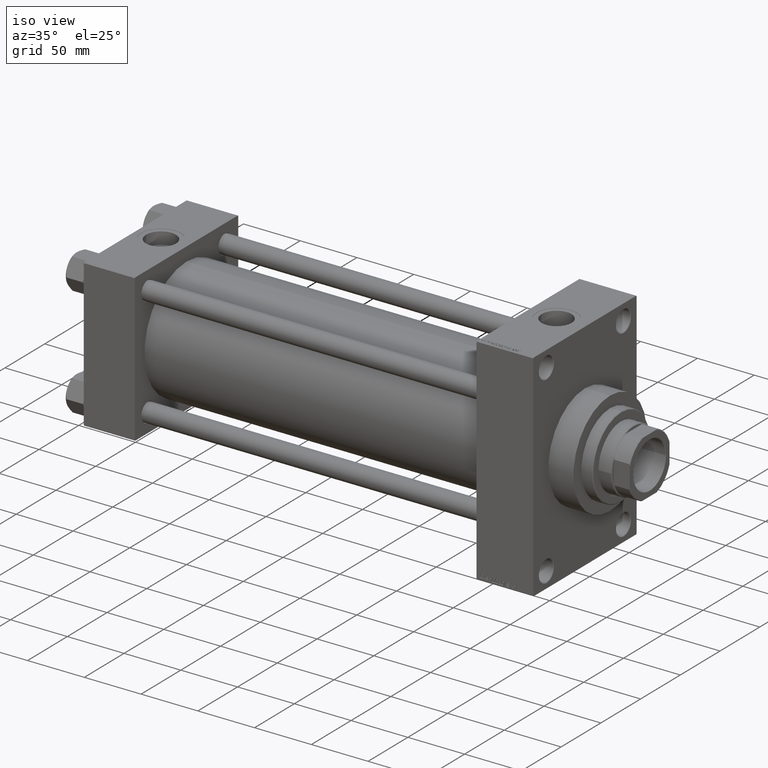
[diagram: clean part render]
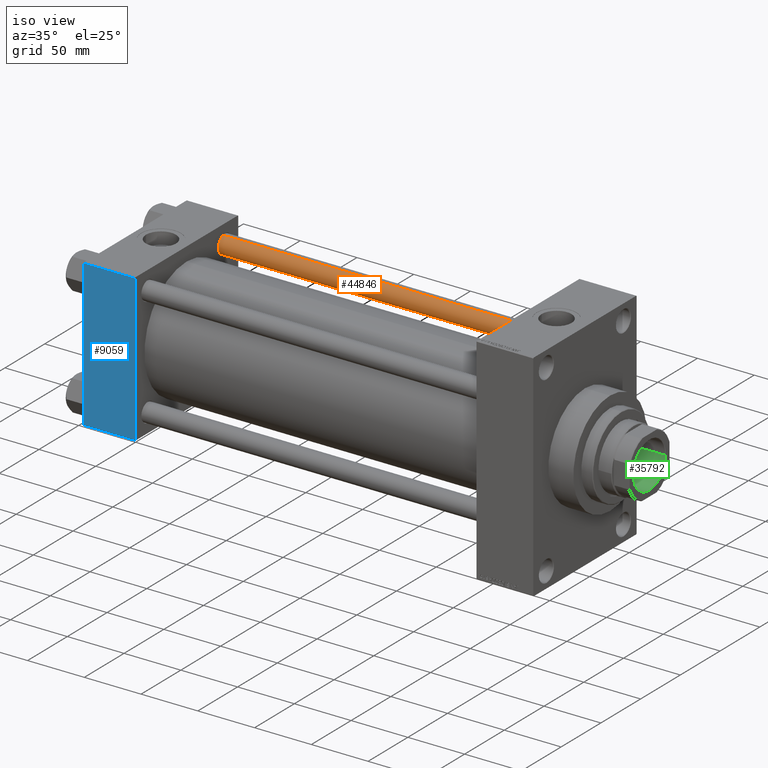
[diagram: same view with three faces highlighted in distinct colors, each labeled with its STEP entity id]
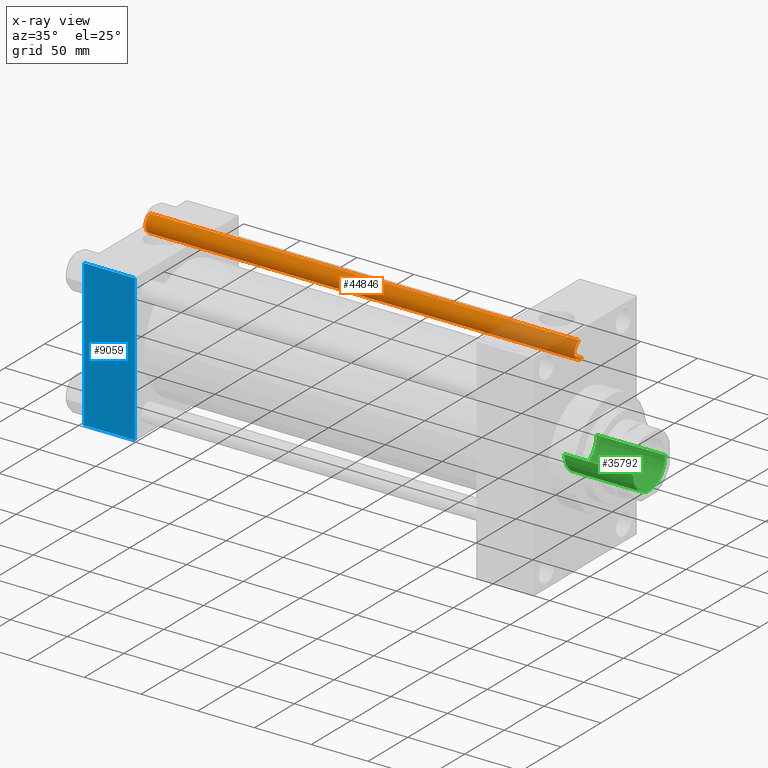
[diagram: x-ray of the same camera — body ghosted, the three highlighted faces saturated]
A machine part, iso view with three faces highlighted in distinct colors.
The next image is the same camera in x-ray (body ghosted, the three faces saturated) — at least one of them is partly hidden behind the body in this view.
Their STEP definitions:

[orange] entity #44846 — the highlighted cylindrical surface (edge-blend (fillet) strip) has radius 8 mm, axis along (-1, -0, 0).
#1501 = ORIENTED_EDGE ( 'NONE', *, *, #3882, .T. ) ;
#3882 = EDGE_CURVE ( 'NONE', #15714, #15536, #28089, .T. ) ;
#8811 = DIRECTION ( 'NONE',  ( 1.000000000000000000, 0.000000000000000000, 0.000000000000000000 ) ) ;
#13014 = CARTESIAN_POINT ( 'NONE',  ( -8.000000000000000000, 0.000000000000000000, 378.4999999999999432 ) ) ;
#13062 = DIRECTION ( 'NONE',  ( -0.000000000000000000, -0.000000000000000000, 1.000000000000000000 ) ) ;
#13870 = DIRECTION ( 'NONE',  ( -0.000000000000000000, -0.000000000000000000, -1.000000000000000000 ) ) ;
#14220 = CARTESIAN_POINT ( 'NONE',  ( 0.000000000000000000, 0.000000000000000000, 379.0000000000000000 ) ) ;
#15536 = VERTEX_POINT ( 'NONE', #21175 ) ;
#15595 = EDGE_CURVE ( 'NONE', #35302, #28977, #32343, .T. ) ;
#15714 = VERTEX_POINT ( 'NONE', #49631 ) ;
#16420 = EDGE_CURVE ( 'NONE', #28977, #15714, #30572, .T. ) ;
#18990 = DIRECTION ( 'NONE',  ( -0.000000000000000000, -0.000000000000000000, -1.000000000000000000 ) ) ;
#21175 = CARTESIAN_POINT ( 'NONE',  ( 8.000000000000000000, 9.797174393178825657E-16, 0.4999999999998894218 ) ) ;
#21192 = LINE ( 'NONE', #25488, #22249 ) ;
#22249 = VECTOR ( 'NONE', #13870, 1000.000000000000000 ) ;
#24830 = DIRECTION ( 'NONE',  ( -1.000000000000000000, 0.000000000000000000, 0.000000000000000000 ) ) ;
#25293 = ORIENTED_EDGE ( 'NONE', *, *, #15595, .T. ) ;
#25488 = CARTESIAN_POINT ( 'NONE',  ( 8.000000000000000000, 9.797174393178825657E-16, 379.0000000000000000 ) ) ;
#26408 = ORIENTED_EDGE ( 'NONE', *, *, #16420, .T. ) ;
#27457 = EDGE_CURVE ( 'NONE', #35302, #15536, #21192, .T. ) ;
#27967 = CARTESIAN_POINT ( 'NONE',  ( 0.000000000000000000, 0.000000000000000000, 378.4999999999999432 ) ) ;
#28089 = CIRCLE ( 'NONE', #47441, 8.000000000000000000 ) ;
#28977 = VERTEX_POINT ( 'NONE', #13014 ) ;
#30572 = LINE ( 'NONE', #45983, #48542 ) ;
#31182 = AXIS2_PLACEMENT_3D ( 'NONE', #14220, #48777, #24830 ) ;
#32343 = CIRCLE ( 'NONE', #38800, 8.000000000000000000 ) ;
#35302 = VERTEX_POINT ( 'NONE', #38251 ) ;
#35979 = CARTESIAN_POINT ( 'NONE',  ( 0.000000000000000000, 0.000000000000000000, 0.4999999999998894218 ) ) ;
#38251 = CARTESIAN_POINT ( 'NONE',  ( 8.000000000000000000, 9.797174393178825657E-16, 378.4999999999999432 ) ) ;
#38800 = AXIS2_PLACEMENT_3D ( 'NONE', #27967, #43350, #8811 ) ;
#39762 = DIRECTION ( 'NONE',  ( 1.000000000000000000, 0.000000000000000000, 0.000000000000000000 ) ) ;
#40187 = CYLINDRICAL_SURFACE ( 'NONE', #31182, 8.000000000000000000 ) ;
#40952 = FACE_OUTER_BOUND ( 'NONE', #44067, .T. ) ;
#43350 = DIRECTION ( 'NONE',  ( 0.000000000000000000, 0.000000000000000000, -1.000000000000000000 ) ) ;
#44067 = EDGE_LOOP ( 'NONE', ( #45243, #25293, #26408, #1501 ) ) ;
#44846 = ADVANCED_FACE ( 'NONE', ( #40952 ), #40187, .T. ) ;
#45243 = ORIENTED_EDGE ( 'NONE', *, *, #27457, .F. ) ;
#45983 = CARTESIAN_POINT ( 'NONE',  ( -8.000000000000000000, 0.000000000000000000, 379.0000000000000000 ) ) ;
#47441 = AXIS2_PLACEMENT_3D ( 'NONE', #35979, #13062, #39762 ) ;
#48542 = VECTOR ( 'NONE', #18990, 1000.000000000000000 ) ;
#48777 = DIRECTION ( 'NONE',  ( -0.000000000000000000, -0.000000000000000000, -1.000000000000000000 ) ) ;
#49631 = CARTESIAN_POINT ( 'NONE',  ( -8.000000000000000000, 0.000000000000000000, 0.4999999999998894218 ) ) ;

[blue] entity #9059 — the highlighted planar face has unit normal (0, 1, 0).
#2958 = VECTOR ( 'NONE', #29754, 1000.000000000000000 ) ;
#4227 = EDGE_CURVE ( 'NONE', #39031, #38340, #43011, .T. ) ;
#4574 = DIRECTION ( 'NONE',  ( 0.000000000000000000, 0.000000000000000000, -1.000000000000000000 ) ) ;
#5822 = LINE ( 'NONE', #14129, #2958 ) ;
#6194 = VECTOR ( 'NONE', #4574, 1000.000000000000000 ) ;
#9059 = ADVANCED_FACE ( 'NONE', ( #46933 ), #28498, .F. ) ;
#12881 = CARTESIAN_POINT ( 'NONE',  ( 45.00000000000000000, -65.00000000000000000, -64.49999999999991473 ) ) ;
#14129 = CARTESIAN_POINT ( 'NONE',  ( 45.00000000000000000, -65.00000000000000000, 64.50000000000000000 ) ) ;
#18595 = VERTEX_POINT ( 'NONE', #45666 ) ;
#20524 = LINE ( 'NONE', #31110, #24027 ) ;
#23744 = LINE ( 'NONE', #39102, #6194 ) ;
#24027 = VECTOR ( 'NONE', #39665, 1000.000000000000000 ) ;
#24720 = DIRECTION ( 'NONE',  ( 0.000000000000000000, -0.000000000000000000, 1.000000000000000000 ) ) ;
#24984 = DIRECTION ( 'NONE',  ( -0.000000000000000000, 1.000000000000000000, 0.000000000000000000 ) ) ;
#27482 = AXIS2_PLACEMENT_3D ( 'NONE', #36557, #24984, #24720 ) ;
#27544 = ORIENTED_EDGE ( 'NONE', *, *, #36717, .T. ) ;
#28498 = PLANE ( 'NONE',  #27482 ) ;
#28966 = VECTOR ( 'NONE', #31153, 1000.000000000000000 ) ;
#29589 = EDGE_CURVE ( 'NONE', #18595, #33998, #23744, .T. ) ;
#29754 = DIRECTION ( 'NONE',  ( -1.000000000000000000, 0.000000000000000000, 0.000000000000000000 ) ) ;
#31110 = CARTESIAN_POINT ( 'NONE',  ( 45.00000000000000000, -65.00000000000000000, -64.49999999999991473 ) ) ;
#31153 = DIRECTION ( 'NONE',  ( 0.000000000000000000, 0.000000000000000000, -1.000000000000000000 ) ) ;
#31629 = ORIENTED_EDGE ( 'NONE', *, *, #29589, .T. ) ;
#33998 = VERTEX_POINT ( 'NONE', #35172 ) ;
#35172 = CARTESIAN_POINT ( 'NONE',  ( 0.000000000000000000, -65.00000000000000000, -64.49999999999991473 ) ) ;
#35917 = CARTESIAN_POINT ( 'NONE',  ( 45.00000000000000000, -65.00000000000000000, 65.00000000000000000 ) ) ;
#36557 = CARTESIAN_POINT ( 'NONE',  ( 45.00000000000000000, -65.00000000000000000, 65.00000000000000000 ) ) ;
#36717 = EDGE_CURVE ( 'NONE', #33998, #38340, #20524, .T. ) ;
#38340 = VERTEX_POINT ( 'NONE', #12881 ) ;
#39031 = VERTEX_POINT ( 'NONE', #44022 ) ;
#39102 = CARTESIAN_POINT ( 'NONE',  ( 0.000000000000000000, -65.00000000000000000, 65.00000000000000000 ) ) ;
#39665 = DIRECTION ( 'NONE',  ( 1.000000000000000000, 0.000000000000000000, 0.000000000000000000 ) ) ;
#41160 = EDGE_LOOP ( 'NONE', ( #31629, #27544, #44761, #42125 ) ) ;
#42125 = ORIENTED_EDGE ( 'NONE', *, *, #43146, .T. ) ;
#43011 = LINE ( 'NONE', #35917, #28966 ) ;
#43146 = EDGE_CURVE ( 'NONE', #39031, #18595, #5822, .T. ) ;
#44022 = CARTESIAN_POINT ( 'NONE',  ( 45.00000000000000000, -65.00000000000000000, 64.50000000000000000 ) ) ;
#44761 = ORIENTED_EDGE ( 'NONE', *, *, #4227, .F. ) ;
#45666 = CARTESIAN_POINT ( 'NONE',  ( 0.000000000000000000, -65.00000000000000000, 64.50000000000000000 ) ) ;
#46933 = FACE_OUTER_BOUND ( 'NONE', #41160, .T. ) ;

[green] entity #35792 — the highlighted cylindrical surface (edge-blend (fillet) strip) has radius 20.25 mm, axis along (1, 0, 0).
#6336 = DIRECTION ( 'NONE',  ( -0.000000000000000000, -0.000000000000000000, 1.000000000000000000 ) ) ;
#7603 = DIRECTION ( 'NONE',  ( 0.000000000000000000, 0.000000000000000000, 1.000000000000000000 ) ) ;
#7742 = CIRCLE ( 'NONE', #38314, 20.24999999999999289 ) ;
#8687 = AXIS2_PLACEMENT_3D ( 'NONE', #25511, #6336, #29518 ) ;
#10668 = CARTESIAN_POINT ( 'NONE',  ( 20.24999999999998934, 0.000000000000000000, 347.0000000000000568 ) ) ;
#11096 = VERTEX_POINT ( 'NONE', #32768 ) ;
#11257 = VERTEX_POINT ( 'NONE', #13073 ) ;
#11342 = CARTESIAN_POINT ( 'NONE',  ( -20.24999999999998934, 2.479909768273389117E-15, 347.0000000000000568 ) ) ;
#11622 = CARTESIAN_POINT ( 'NONE',  ( 20.24999999999999289, 0.000000000000000000, 408.0000000000000568 ) ) ;
#13036 = EDGE_CURVE ( 'NONE', #40917, #11096, #34299, .T. ) ;
#13073 = CARTESIAN_POINT ( 'NONE',  ( -20.24999999999999289, 2.479909768273389511E-15, 407.6999999999998749 ) ) ;
#13223 = EDGE_LOOP ( 'NONE', ( #34064, #29963, #32937, #37177 ) ) ;
#15146 = DIRECTION ( 'NONE',  ( -0.000000000000000000, -0.000000000000000000, 1.000000000000000000 ) ) ;
#16432 = AXIS2_PLACEMENT_3D ( 'NONE', #46845, #31673, #24377 ) ;
#18095 = CARTESIAN_POINT ( 'NONE',  ( -20.24999999999999289, 2.479909768273389511E-15, 408.0000000000000568 ) ) ;
#18177 = FACE_OUTER_BOUND ( 'NONE', #13223, .T. ) ;
#22975 = DIRECTION ( 'NONE',  ( 1.000000000000000000, 0.000000000000000000, 0.000000000000000000 ) ) ;
#23262 = EDGE_CURVE ( 'NONE', #40917, #38592, #25326, .T. ) ;
#24377 = DIRECTION ( 'NONE',  ( 1.000000000000000000, 0.000000000000000000, 0.000000000000000000 ) ) ;
#25326 = CIRCLE ( 'NONE', #16432, 20.24999999999998934 ) ;
#25511 = CARTESIAN_POINT ( 'NONE',  ( 0.000000000000000000, 0.000000000000000000, 408.0000000000000568 ) ) ;
#25916 = LINE ( 'NONE', #18095, #38449 ) ;
#27269 = EDGE_CURVE ( 'NONE', #11096, #11257, #7742, .T. ) ;
#29518 = DIRECTION ( 'NONE',  ( 1.000000000000000000, 0.000000000000000000, 0.000000000000000000 ) ) ;
#29963 = ORIENTED_EDGE ( 'NONE', *, *, #23262, .F. ) ;
#31673 = DIRECTION ( 'NONE',  ( -0.000000000000000000, -0.000000000000000000, 1.000000000000000000 ) ) ;
#32768 = CARTESIAN_POINT ( 'NONE',  ( 20.24999999999999289, 0.000000000000000000, 407.6999999999998749 ) ) ;
#32937 = ORIENTED_EDGE ( 'NONE', *, *, #13036, .T. ) ;
#34064 = ORIENTED_EDGE ( 'NONE', *, *, #34655, .F. ) ;
#34299 = LINE ( 'NONE', #11622, #39544 ) ;
#34655 = EDGE_CURVE ( 'NONE', #38592, #11257, #25916, .T. ) ;
#35792 = ADVANCED_FACE ( 'NONE', ( #18177 ), #48702, .F. ) ;
#37177 = ORIENTED_EDGE ( 'NONE', *, *, #27269, .T. ) ;
#38314 = AXIS2_PLACEMENT_3D ( 'NONE', #49470, #7603, #22975 ) ;
#38449 = VECTOR ( 'NONE', #41281, 1000.000000000000000 ) ;
#38592 = VERTEX_POINT ( 'NONE', #11342 ) ;
#39544 = VECTOR ( 'NONE', #15146, 1000.000000000000000 ) ;
#40917 = VERTEX_POINT ( 'NONE', #10668 ) ;
#41281 = DIRECTION ( 'NONE',  ( -0.000000000000000000, -0.000000000000000000, 1.000000000000000000 ) ) ;
#46845 = CARTESIAN_POINT ( 'NONE',  ( 0.000000000000000000, 0.000000000000000000, 347.0000000000000568 ) ) ;
#48702 = CYLINDRICAL_SURFACE ( 'NONE', #8687, 20.24999999999999289 ) ;
#49470 = CARTESIAN_POINT ( 'NONE',  ( 0.000000000000000000, 0.000000000000000000, 407.6999999999998749 ) ) ;